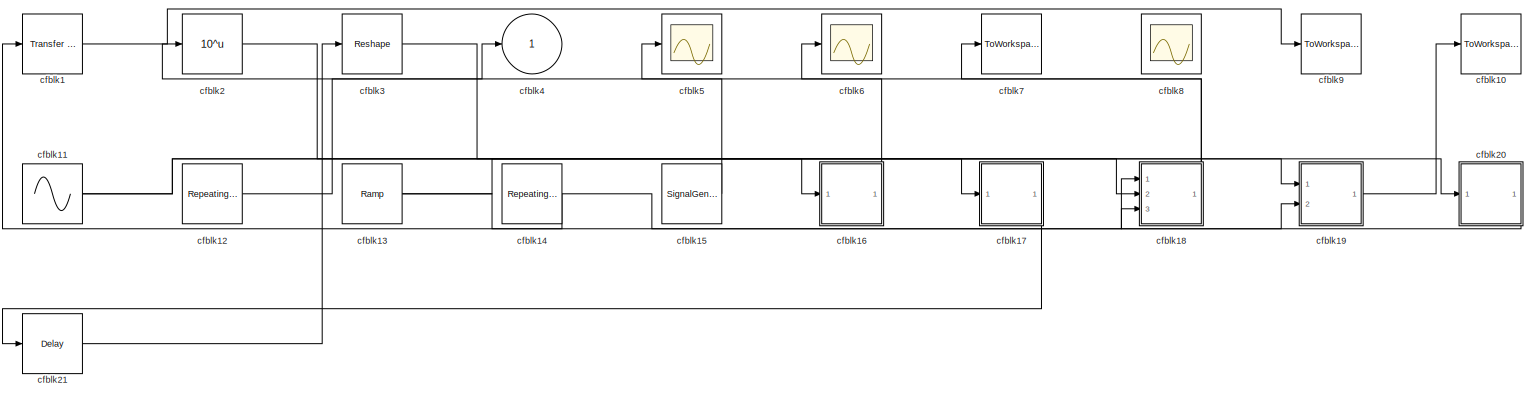
[diagram: root canvas - part 1/1, most of the canvas]
MODEL slx_135407658e4f
KIND model
CONFIG AbsTol = auto
CONFIG EnableMultiTasking = off
CONFIG FixedStep = auto
CONFIG MaxStep = auto
CONFIG MinStep = auto
CONFIG RelTol = 1e-3
CONFIG SampleTimeConstraint = Unconstrained
CONFIG SolverName = VariableStepAuto
CONFIG StartTime = 0.0
CONFIG StopTime = 10.0
BLOCK [Reference] cfblk1  REF=simulink/Discrete/Transfer Fcn
First Order
  Ports = [1, 1]
  SourceBlock = simulink/Discrete/Transfer Fcn\nFirst Order
  SourceProductBaseCode = SL
  SourceType = First Order Transfer Fcn
BLOCK [ToWorkspace] cfblk10
  FixptAsFi = on
  MaxDataPoints = inf
  Ports = [1]
  SampleTime = -1
  SaveFormat = Timeseries
  VariableName = uvazxhy
BLOCK [Sin] cfblk11
  Amplitude = [200944024.626752]
  Bias = [169774083.790876]
  Ports = [0, 1]
  SampleTime = 0
BLOCK [Reference] cfblk12  REF=simulink/Sources/Repeating
Sequence
  Ports = [0, 1]
  SourceBlock = simulink/Sources/Repeating\nSequence
  SourceProductBaseCode = SL
  SourceType = Repeating table
BLOCK [Reference] cfblk13  REF=simulink/Sources/Ramp
  Ports = [0, 1]
  SourceBlock = simulink/Sources/Ramp
  SourceProductBaseCode = SL
  SourceType = Ramp
BLOCK [Reference] cfblk14  REF=simulink/Sources/Repeating
Sequence
  Ports = [0, 1]
  SourceBlock = simulink/Sources/Repeating\nSequence
  SourceProductBaseCode = SL
  SourceType = Repeating table
BLOCK [SignalGenerator] cfblk15
  Amplitude = [700624424.036884]
  Ports = [0, 1]
  Units = rad/sec
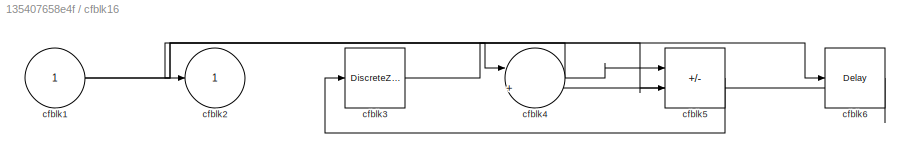
BLOCK [SubSystem] cfblk16
  Ports = [1, 1]
  RequestExecContextInheritance = off
BLOCK [Inport] cfblk16/cfblk1
BLOCK [Outport] cfblk16/cfblk2
BLOCK [DiscreteZeroPole] cfblk16/cfblk3
  Gain = 1
  Poles = [0 0.5]
BLOCK [Sum] cfblk16/cfblk4
  Inputs = |++
  Ports = [2, 1]
BLOCK [Sum] cfblk16/cfblk5
  IconShape = rectangular
  Inputs = +-
  Ports = [2, 1]
BLOCK [Delay] cfblk16/cfblk6
  InputPortMap = u0
  Ports = [1, 1]
  SampleTime = 1
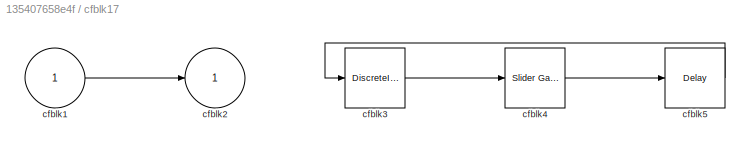
BLOCK [SubSystem] cfblk17
  Ports = [1, 1]
  RequestExecContextInheritance = off
BLOCK [Inport] cfblk17/cfblk1
BLOCK [Outport] cfblk17/cfblk2
BLOCK [DiscreteIntegrator] cfblk17/cfblk3
  ICPrevOutput = DiscIntNeverNeededParam
  ICPrevScaledInput = DiscIntNeverNeededParam
  InitialConditionSetting = Auto
  Ports = [1, 1]
BLOCK [Reference] cfblk17/cfblk4  REF=simulink/Math
Operations/Slider
Gain
  Ports = [1, 1]
  SourceBlock = simulink/Math\nOperations/Slider\nGain
  SourceProductBaseCode = SL
  SourceType = Slider Gain
BLOCK [Delay] cfblk17/cfblk5
  InputPortMap = u0
  Ports = [1, 1]
  SampleTime = 1
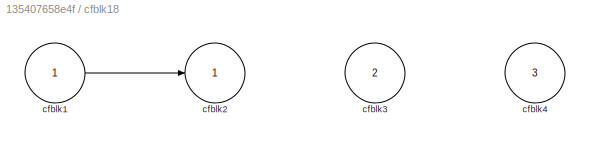
BLOCK [SubSystem] cfblk18
  Ports = [3, 1]
  RequestExecContextInheritance = off
BLOCK [Inport] cfblk18/cfblk1
BLOCK [Outport] cfblk18/cfblk2
BLOCK [Inport] cfblk18/cfblk3
  Port = 2
BLOCK [Inport] cfblk18/cfblk4
  Port = 3
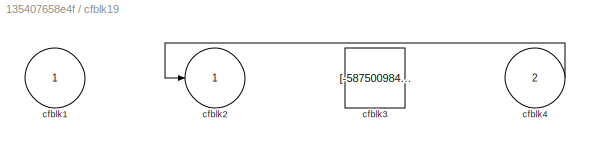
BLOCK [SubSystem] cfblk19
  Ports = [2, 1]
  RequestExecContextInheritance = off
BLOCK [Inport] cfblk19/cfblk1
BLOCK [Outport] cfblk19/cfblk2
BLOCK [Constant] cfblk19/cfblk3
  SampleTime = 1
  Value = [-587500984.819963]
BLOCK [Inport] cfblk19/cfblk4
  Port = 2
BLOCK [Math] cfblk2
  Operator = 10^u
  Ports = [1, 1]
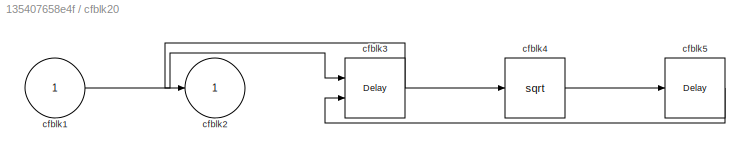
BLOCK [SubSystem] cfblk20
  Ports = [1, 1]
  RequestExecContextInheritance = off
BLOCK [Inport] cfblk20/cfblk1
BLOCK [Outport] cfblk20/cfblk2
BLOCK [Delay] cfblk20/cfblk3
  InputPortMap = u0,e6
  Ports = [2, 1]
  SampleTime = 1
  ShowEnablePort = on
BLOCK [Sqrt] cfblk20/cfblk4
BLOCK [Delay] cfblk20/cfblk5
  InputPortMap = u0
  Ports = [1, 1]
  SampleTime = 1
BLOCK [Delay] cfblk21
  InputPortMap = u0
  Ports = [1, 1]
  SampleTime = 1
BLOCK [Reshape] cfblk3
  Ports = [1, 1]
BLOCK [Outport] cfblk4
BLOCK [Scope] cfblk5
  Floating = off
  NumInputPorts = 1
  Ports = [1]
BLOCK [Scope] cfblk6
  Floating = off
  NumInputPorts = 1
  Ports = [1]
BLOCK [ToWorkspace] cfblk7
  FixptAsFi = on
  MaxDataPoints = inf
  Ports = [1]
  SampleTime = -1
  SaveFormat = Timeseries
  VariableName = iaynnkd
BLOCK [Scope] cfblk8
  Floating = on
  NumInputPorts = 1
  Ports = []
BLOCK [ToWorkspace] cfblk9
  FixptAsFi = on
  MaxDataPoints = inf
  Ports = [1]
  SampleTime = -1
  SaveFormat = Timeseries
  VariableName = wzeupzz
NET cfblk11:1 -> cfblk18:2, cfblk20:1
LINE cfblk12:1 -> cfblk4:1
NET cfblk13:1 -> cfblk16:1, cfblk19:2
NET cfblk14:1 -> cfblk18:3, cfblk1:1
LINE cfblk15:1 -> cfblk2:1
NET cfblk16/cfblk1:1 -> cfblk16/cfblk4:1, cfblk16/cfblk5:2
LINE cfblk16/cfblk3:1 -> cfblk16/cfblk6:1
NET cfblk16/cfblk4:1 -> cfblk16/cfblk2:1, cfblk16/cfblk5:1
LINE cfblk16/cfblk5:1 -> cfblk16/cfblk3:1
LINE cfblk16/cfblk6:1 -> cfblk16/cfblk4:2
LINE cfblk16:1 -> cfblk5:1
LINE cfblk17/cfblk1:1 -> cfblk17/cfblk2:1
LINE cfblk17/cfblk3:1 -> cfblk17/cfblk4:1
LINE cfblk17/cfblk4:1 -> cfblk17/cfblk5:1
LINE cfblk17/cfblk5:1 -> cfblk17/cfblk3:1
LINE cfblk17:1 -> cfblk21:1
LINE cfblk18/cfblk1:1 -> cfblk18/cfblk2:1
NET cfblk18:1 -> cfblk6:1, cfblk7:1
LINE cfblk19/cfblk4:1 -> cfblk19/cfblk2:1
LINE cfblk19:1 -> cfblk10:1
LINE cfblk1:1 -> cfblk9:1
LINE cfblk20/cfblk1:1 -> cfblk20/cfblk3:1
NET cfblk20/cfblk3:1 -> cfblk20/cfblk2:1, cfblk20/cfblk4:1
LINE cfblk20/cfblk4:1 -> cfblk20/cfblk5:1
LINE cfblk20/cfblk5:1 -> cfblk20/cfblk3:2
LINE cfblk20:1 -> cfblk18:1
LINE cfblk21:1 -> cfblk3:1
LINE cfblk2:1 -> cfblk19:1
LINE cfblk3:1 -> cfblk17:1
note: NET lines group one-source signal fan-out (src -> all destinations, sorted); 1:1 wires keep LINE
